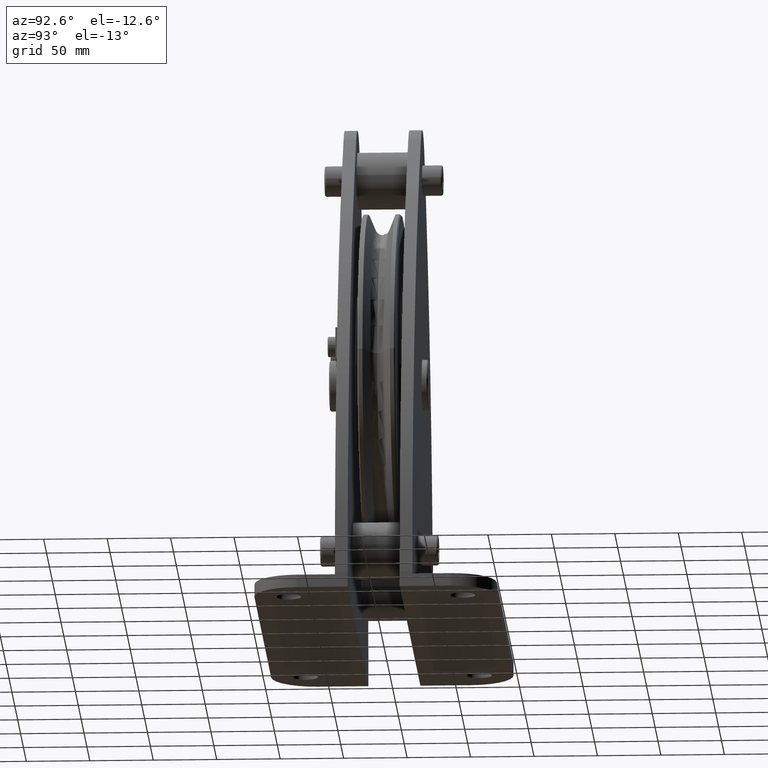
[diagram: clean part render]
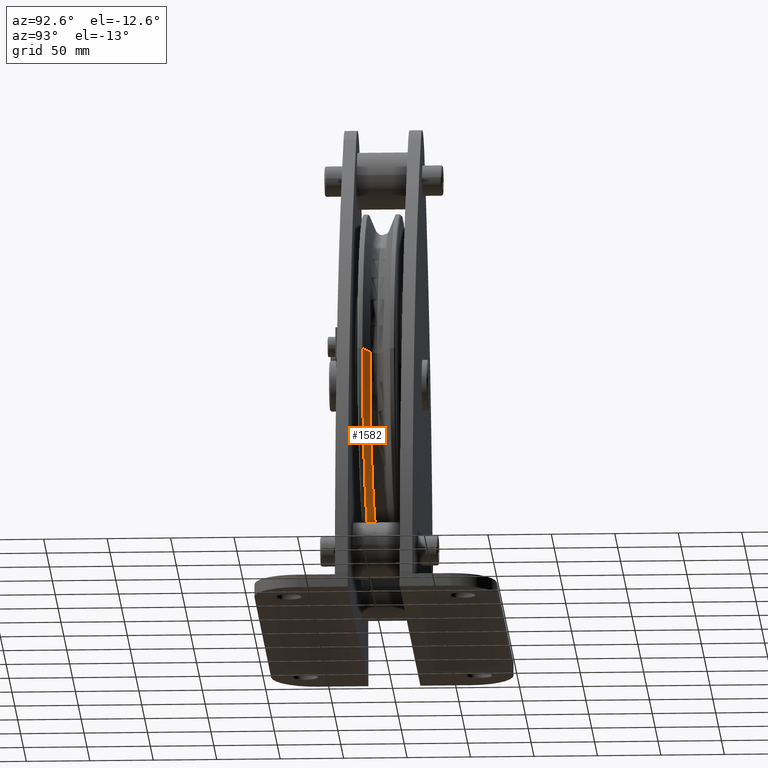
[diagram: same view with one face highlighted and labeled with its STEP entity id]
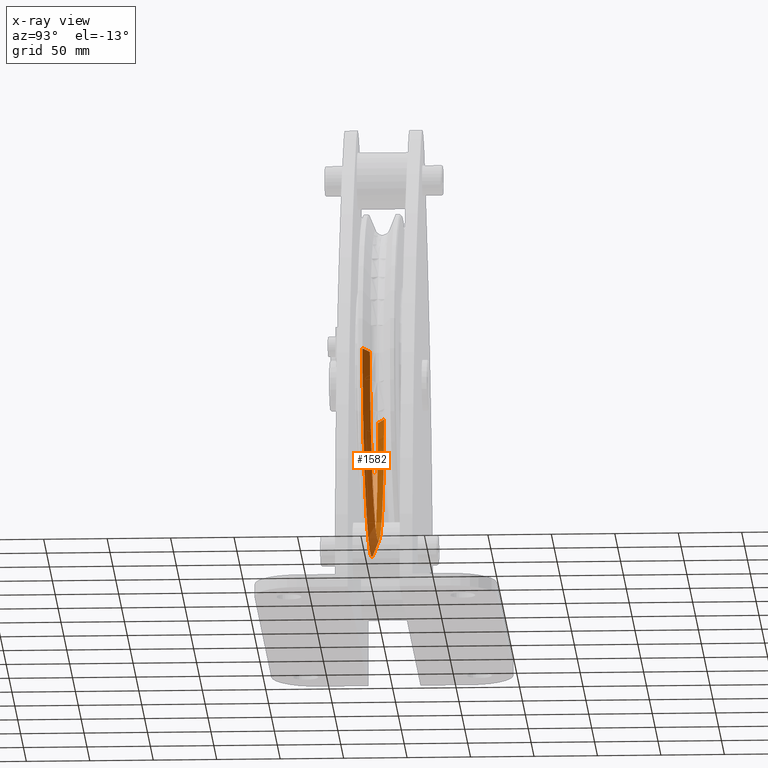
[diagram: x-ray of the same camera — body ghosted, the highlighted face saturated]
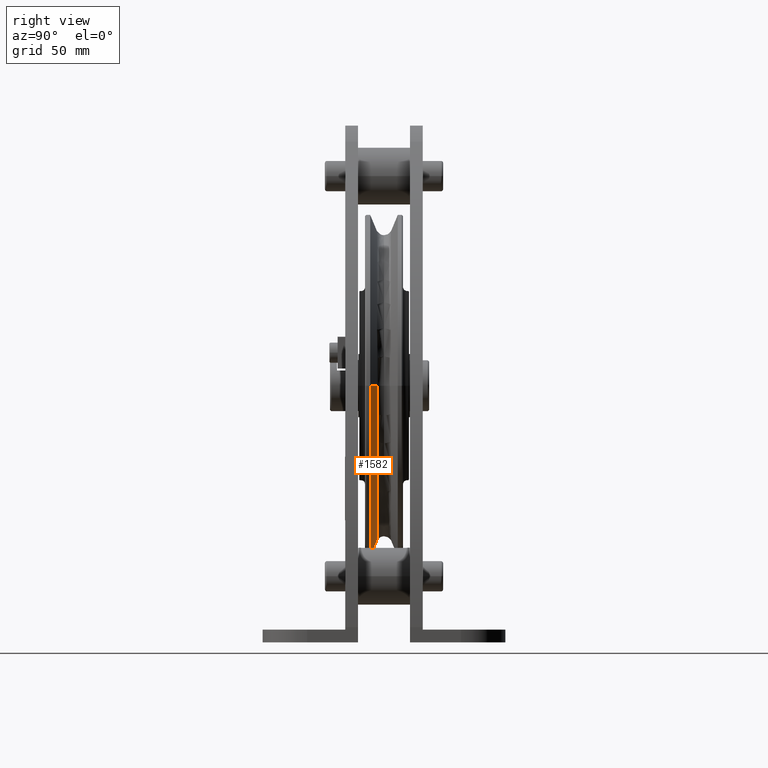
[diagram: same view with one face highlighted and labeled with its STEP entity id]
A machine part, auxiliary view. The second image highlights one B-rep face of the part: STEP entity #1582.
The next image is the same camera in x-ray: the body ghosted, the highlighted face saturated — about 38% of this face is hidden behind the body in this view.
A second angle (right view) of the same face is appended — the face is thin or edge-on in the first view.
In plain terms, the highlighted conical surface has half-angle 67.5 deg.
Its self-contained STEP definition (entity closure, byte-faithful):
#1582=ADVANCED_FACE('',(#3418),#3419,.T.);
#3418=FACE_OUTER_BOUND('',#5490,.T.);
#3419=CONICAL_SURFACE('',#5491,128.6019495,1.17809725041222);
#5490=EDGE_LOOP('',(#10487,#10488,#10489,#10490));
#5491=AXIS2_PLACEMENT_3D('',#10491,#10492,#10493);
#10487=ORIENTED_EDGE('',*,*,#12827,.T.);
#10488=ORIENTED_EDGE('',*,*,#14221,.F.);
#10489=ORIENTED_EDGE('',*,*,#12828,.T.);
#10490=ORIENTED_EDGE('',*,*,#12421,.T.);
#10491=CARTESIAN_POINT('',(0.0,-8.19343625,0.0));
#10492=DIRECTION('',(-0.0,-1.0,0.0));
#10493=DIRECTION('',(1.0,0.0,0.0));
#12421=EDGE_CURVE('',#14930,#14932,#14937,.T.);
#12827=EDGE_CURVE('',#14932,#15529,#15613,.T.);
#12828=EDGE_CURVE('',#15532,#14930,#15614,.T.);
#14221=EDGE_CURVE('',#15532,#15529,#17683,.T.);
#14930=VERTEX_POINT('',#19987);
#14932=VERTEX_POINT('',#19989);
#14937=CIRCLE('',#19994,122.203899);
#15529=VERTEX_POINT('',#23015);
#15532=VERTEX_POINT('',#23019);
#15613=LINE('',#23117,#23118);
#15614=LINE('',#23119,#23120);
#17683=CIRCLE('',#25921,135.0);
#19987=CARTESIAN_POINT('',(-122.203899,-5.543277,1.49656613753676E-014));
#19989=CARTESIAN_POINT('',(122.203899,-5.543277,0.0));
#19994=AXIS2_PLACEMENT_3D('',#28260,#28261,#28262);
#23015=CARTESIAN_POINT('',(135.0,-10.8435955,0.0));
#23019=CARTESIAN_POINT('',(-135.0,-10.8435955,1.65327317884893E-014));
#23117=CARTESIAN_POINT('',(128.6019495,-8.19343625,-1.57491965819285E-014));
#23118=VECTOR('',#28841,1.0);
#23119=CARTESIAN_POINT('',(-128.6019495,-8.19343625,1.57491965819284E-014));
#23120=VECTOR('',#28842,1.0);
#25921=AXIS2_PLACEMENT_3D('',#30445,#30446,#30447);
#28260=CARTESIAN_POINT('',(0.0,-5.543277,0.0));
#28261=DIRECTION('',(0.0,-1.0,0.0));
#28262=DIRECTION('',(1.0,0.0,0.0));
#28841=DIRECTION('',(0.923879534545651,-0.382683427453699,-1.13142611477908E-016));
#28842=DIRECTION('',(0.923879534545651,0.382683427453699,-1.13142611477908E-016));
#30445=CARTESIAN_POINT('',(0.0,-10.8435955,0.0));
#30446=DIRECTION('',(0.0,-1.0,0.0));
#30447=DIRECTION('',(1.0,0.0,0.0));